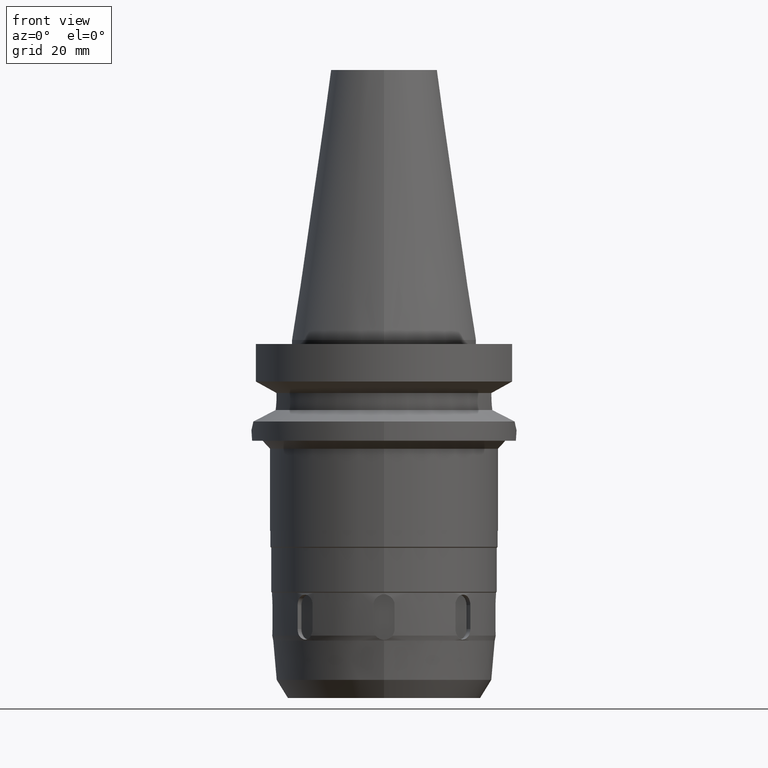
[diagram: clean part render]
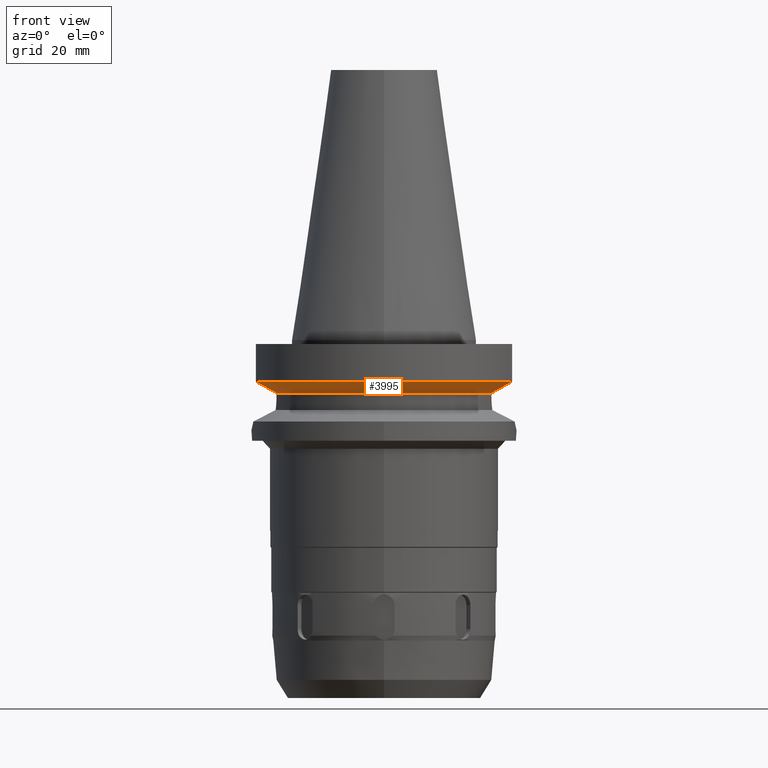
[diagram: same view with one face highlighted and labeled with its STEP entity id]
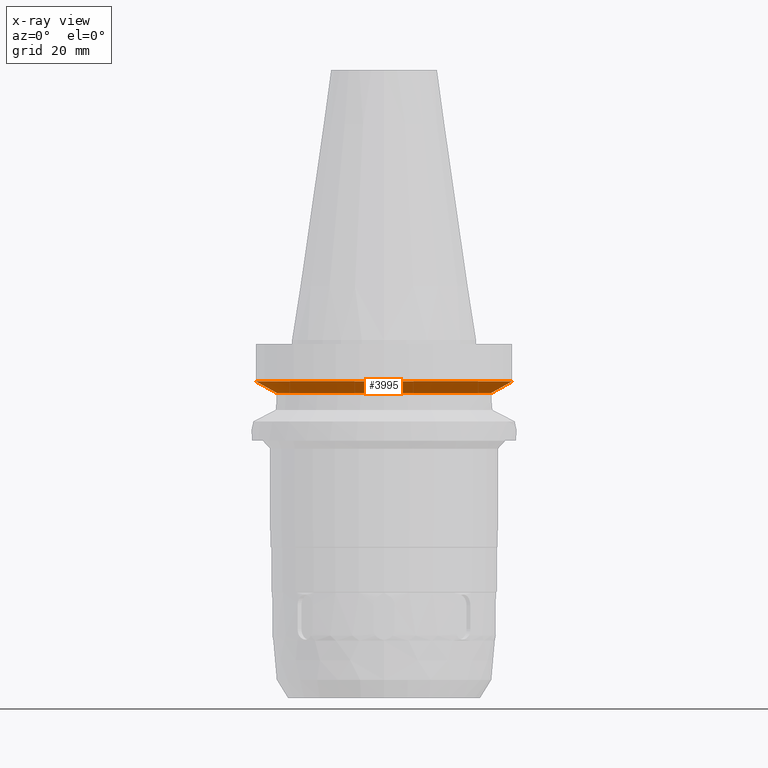
[diagram: x-ray of the same camera — body ghosted, the highlighted face saturated]
A machine part, front view. The second image highlights one B-rep face of the part: STEP entity #3995.
The next image is the same camera in x-ray: the body ghosted, the highlighted face saturated — about 0% of this face is hidden behind the body in this view.
In plain terms, the highlighted conical surface has half-angle 60 deg.
Its self-contained STEP definition (entity closure, byte-faithful):
#1812=CARTESIAN_POINT('',(-4.832056912816E1,-1.285000385722E1,
-1.566265768303E1));
#1813=CARTESIAN_POINT('',(-4.745408729252E1,-1.285000385722E1,
-1.614611802353E1));
#1814=CARTESIAN_POINT('',(-4.572065044211E1,-1.284999774293E1,
-1.711204882296E1));
#1815=CARTESIAN_POINT('',(-4.311729623264E1,-1.285000211392E1,
-1.855526470898E1));
#1816=CARTESIAN_POINT('',(-4.138011668146E1,-1.284999657224E1,
-1.951445436285E1));
#1817=CARTESIAN_POINT('',(-4.051083297210E1,-1.284999657224E1,
-1.999284556031E1));
#1856=CARTESIAN_POINT('',(0.E0,1.006319759054E-14,-1.566269223573E1));
#1857=DIRECTION('',(0.E0,0.E0,1.E0));
#1858=DIRECTION('',(-9.664114030784E-1,-2.57E-1,0.E0));
#1859=AXIS2_PLACEMENT_3D('',#1856,#1857,#1858);
#1864=CARTESIAN_POINT('',(0.E0,1.006319759054E-14,-1.566269223573E1));
#1865=DIRECTION('',(0.E0,0.E0,1.E0));
#1866=DIRECTION('',(0.E0,-1.E0,0.E0));
#1867=AXIS2_PLACEMENT_3D('',#1864,#1865,#1866);
#1872=CARTESIAN_POINT('',(0.E0,1.006319759054E-14,-1.999281925465E1));
#1873=DIRECTION('',(0.E0,0.E0,-1.E0));
#1874=DIRECTION('',(9.531960443487E-1,-3.023529411765E-1,0.E0));
#1875=AXIS2_PLACEMENT_3D('',#1872,#1873,#1874);
#1880=CARTESIAN_POINT('',(0.E0,1.006319759054E-14,-1.999281925465E1));
#1881=DIRECTION('',(0.E0,0.E0,-1.E0));
#1882=DIRECTION('',(0.E0,-1.E0,0.E0));
#1883=AXIS2_PLACEMENT_3D('',#1880,#1881,#1882);
#1902=CARTESIAN_POINT('',(4.051083297223E1,-1.284999657184E1,
-1.999284556342E1));
#1903=CARTESIAN_POINT('',(4.138011668360E1,-1.284999657184E1,
-1.951445436485E1));
#1904=CARTESIAN_POINT('',(4.311729624158E1,-1.285000211425E1,
-1.855526472657E1));
#1905=CARTESIAN_POINT('',(4.572065044331E1,-1.284999774238E1,
-1.711204882230E1));
#1906=CARTESIAN_POINT('',(4.745408728620E1,-1.285000385828E1,
-1.614611801739E1));
#1907=CARTESIAN_POINT('',(4.832056912788E1,-1.285000385828E1,
-1.566265767353E1));
#2715=CARTESIAN_POINT('',(-4.051083297210E1,-1.284999657224E1,
-1.999284556031E1));
#2716=VERTEX_POINT('',#2715);
#2717=CARTESIAN_POINT('',(4.051083188482E1,-1.285E1,-1.999281925465E1));
#2718=CARTESIAN_POINT('',(0.E0,-4.25E1,-1.999281925465E1));
#2719=VERTEX_POINT('',#2717);
#2720=VERTEX_POINT('',#2718);
#2731=CARTESIAN_POINT('',(-4.832056912816E1,-1.285000385722E1,
-1.566265768303E1));
#2732=VERTEX_POINT('',#2731);
#2762=CARTESIAN_POINT('',(0.E0,-5.E1,-1.566269223573E1));
#2763=CARTESIAN_POINT('',(4.832057015392E1,-1.285E1,-1.566269223573E1));
#2764=VERTEX_POINT('',#2762);
#2765=VERTEX_POINT('',#2763);
#3979=CARTESIAN_POINT('',(0.E0,1.006319759054E-14,-1.782775574519E1));
#3980=DIRECTION('',(0.E0,0.E0,1.E0));
#3981=DIRECTION('',(0.E0,1.E0,0.E0));
#3982=AXIS2_PLACEMENT_3D('',#3979,#3980,#3981);
#3983=CONICAL_SURFACE('',#3982,4.625E1,6.E1);
#3984=ORIENTED_EDGE('',*,*,#3955,.F.);
#3986=ORIENTED_EDGE('',*,*,#3985,.T.);
#3988=ORIENTED_EDGE('',*,*,#3987,.T.);
#3990=ORIENTED_EDGE('',*,*,#3989,.F.);
#3991=ORIENTED_EDGE('',*,*,#3969,.T.);
#3992=ORIENTED_EDGE('',*,*,#3967,.T.);
#3993=EDGE_LOOP('',(#3984,#3986,#3988,#3990,#3991,#3992));
#3994=FACE_OUTER_BOUND('',#3993,.F.);
#1818=B_SPLINE_CURVE_WITH_KNOTS('',3,(#1812,#1813,#1814,#1815,#1816,#1817),
.UNSPECIFIED.,.F.,.F.,(4,1,1,4),(0.E0,3.333333333333E-1,6.666666666667E-1,1.E0),
.UNSPECIFIED.);
#1860=CIRCLE('',#1859,5.E1);
#1868=CIRCLE('',#1867,5.E1);
#1876=CIRCLE('',#1875,4.25E1);
#1884=CIRCLE('',#1883,4.25E1);
#1908=B_SPLINE_CURVE_WITH_KNOTS('',3,(#1902,#1903,#1904,#1905,#1906,#1907),
.UNSPECIFIED.,.F.,.F.,(4,1,1,4),(0.E0,3.333333333333E-1,6.666666666667E-1,1.E0),
.UNSPECIFIED.);
#3955=EDGE_CURVE('',#2732,#2716,#1818,.T.);
#3967=EDGE_CURVE('',#2720,#2716,#1884,.T.);
#3969=EDGE_CURVE('',#2719,#2720,#1876,.T.);
#3985=EDGE_CURVE('',#2732,#2764,#1860,.T.);
#3987=EDGE_CURVE('',#2764,#2765,#1868,.T.);
#3989=EDGE_CURVE('',#2719,#2765,#1908,.T.);
#3995=ADVANCED_FACE('',(#3994),#3983,.T.);